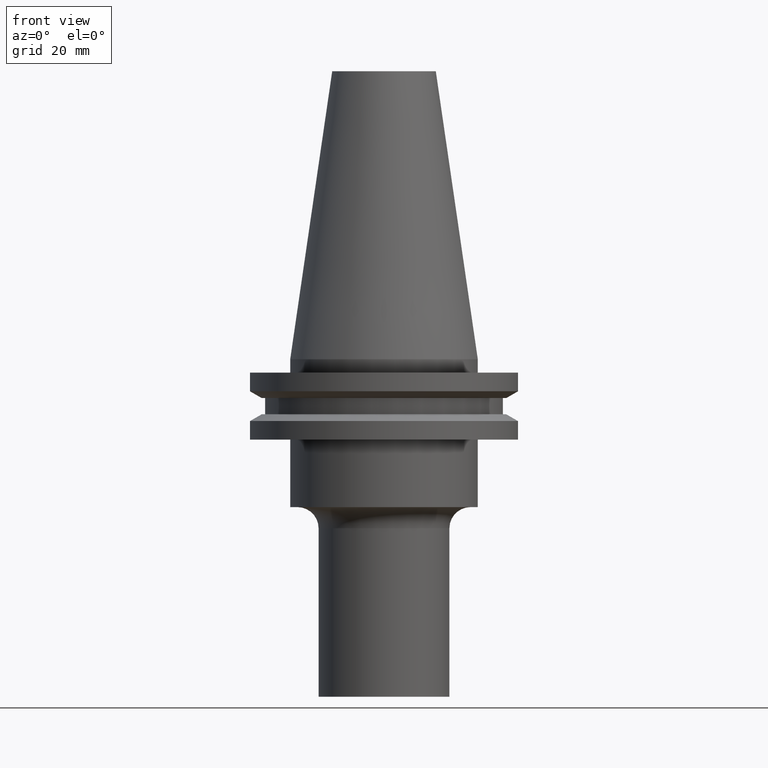
[diagram: clean part render]
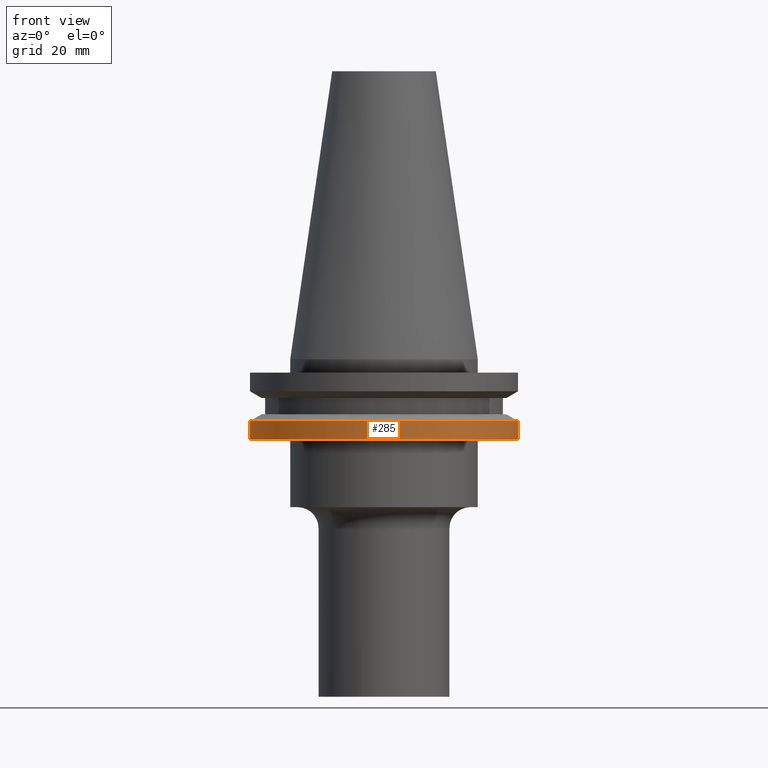
[diagram: same view with one face highlighted and labeled with its STEP entity id]
A machine part, front view. The second image highlights one B-rep face of the part: STEP entity #285.
In plain terms, the highlighted cylindrical surface (partial cylindrical patch) has radius 31.75 mm, axis along (-0, -0, 1).
Its self-contained STEP definition (entity closure, byte-faithful):
#31 = VECTOR ( 'NONE', #150, 1000.000000000000000 ) ;
#54 = DIRECTION ( 'NONE',  ( -0.000000000000000000, -0.000000000000000000, 1.000000000000000000 ) ) ;
#107 = DIRECTION ( 'NONE',  ( 1.000000000000000000, 0.000000000000000000, 0.000000000000000000 ) ) ;
#150 = DIRECTION ( 'NONE',  ( -0.000000000000000000, -0.000000000000000000, 1.000000000000000000 ) ) ;
#154 = LINE ( 'NONE', #335, #309 ) ;
#161 = ORIENTED_EDGE ( 'NONE', *, *, #191, .T. ) ;
#177 = FACE_OUTER_BOUND ( 'NONE', #236, .T. ) ;
#178 = CIRCLE ( 'NONE', #611, 31.74999999999999289 ) ;
#191 = EDGE_CURVE ( 'NONE', #520, #298, #178, .T. ) ;
#209 = CARTESIAN_POINT ( 'NONE',  ( 0.000000000000000000, 0.000000000000000000, -19.04999999999999716 ) ) ;
#214 = CARTESIAN_POINT ( 'NONE',  ( 31.75000000000000000, 0.000000000000000000, -14.65472339340266572 ) ) ;
#236 = EDGE_LOOP ( 'NONE', ( #360, #161, #419, #413 ) ) ;
#283 = CYLINDRICAL_SURFACE ( 'NONE', #582, 31.75000000000000000 ) ;
#285 = ADVANCED_FACE ( 'NONE', ( #177 ), #283, .T. ) ;
#288 = AXIS2_PLACEMENT_3D ( 'NONE', #591, #54, #107 ) ;
#298 = VERTEX_POINT ( 'NONE', #641 ) ;
#309 = VECTOR ( 'NONE', #447, 1000.000000000000000 ) ;
#326 = CARTESIAN_POINT ( 'NONE',  ( -31.74999999999999289, 3.888253587292845687E-15, -19.04999999999999716 ) ) ;
#335 = CARTESIAN_POINT ( 'NONE',  ( 31.75000000000000000, 0.000000000000000000, 68.25000000000000000 ) ) ;
#346 = VERTEX_POINT ( 'NONE', #760 ) ;
#358 = DIRECTION ( 'NONE',  ( -0.000000000000000000, -0.000000000000000000, 1.000000000000000000 ) ) ;
#360 = ORIENTED_EDGE ( 'NONE', *, *, #417, .F. ) ;
#381 = EDGE_CURVE ( 'NONE', #346, #722, #616, .T. ) ;
#404 = CARTESIAN_POINT ( 'NONE',  ( 0.000000000000000000, 0.000000000000000000, 68.25000000000000000 ) ) ;
#413 = ORIENTED_EDGE ( 'NONE', *, *, #381, .F. ) ;
#417 = EDGE_CURVE ( 'NONE', #520, #346, #567, .T. ) ;
#419 = ORIENTED_EDGE ( 'NONE', *, *, #629, .T. ) ;
#431 = DIRECTION ( 'NONE',  ( -0.000000000000000000, -0.000000000000000000, 1.000000000000000000 ) ) ;
#447 = DIRECTION ( 'NONE',  ( -0.000000000000000000, -0.000000000000000000, 1.000000000000000000 ) ) ;
#449 = CARTESIAN_POINT ( 'NONE',  ( -31.75000000000000000, 3.888253587292846476E-15, 68.25000000000000000 ) ) ;
#518 = DIRECTION ( 'NONE',  ( 1.000000000000000000, 0.000000000000000000, 0.000000000000000000 ) ) ;
#520 = VERTEX_POINT ( 'NONE', #326 ) ;
#567 = LINE ( 'NONE', #449, #31 ) ;
#582 = AXIS2_PLACEMENT_3D ( 'NONE', #404, #358, #518 ) ;
#591 = CARTESIAN_POINT ( 'NONE',  ( 0.000000000000000000, 0.000000000000000000, -14.65472339340266572 ) ) ;
#611 = AXIS2_PLACEMENT_3D ( 'NONE', #209, #431, #670 ) ;
#616 = CIRCLE ( 'NONE', #288, 31.75000000000000000 ) ;
#629 = EDGE_CURVE ( 'NONE', #298, #722, #154, .T. ) ;
#641 = CARTESIAN_POINT ( 'NONE',  ( 31.74999999999999289, 0.000000000000000000, -19.04999999999999716 ) ) ;
#670 = DIRECTION ( 'NONE',  ( 1.000000000000000000, 0.000000000000000000, 0.000000000000000000 ) ) ;
#722 = VERTEX_POINT ( 'NONE', #214 ) ;
#760 = CARTESIAN_POINT ( 'NONE',  ( -31.75000000000000000, 3.888253587292846476E-15, -14.65472339340266572 ) ) ;